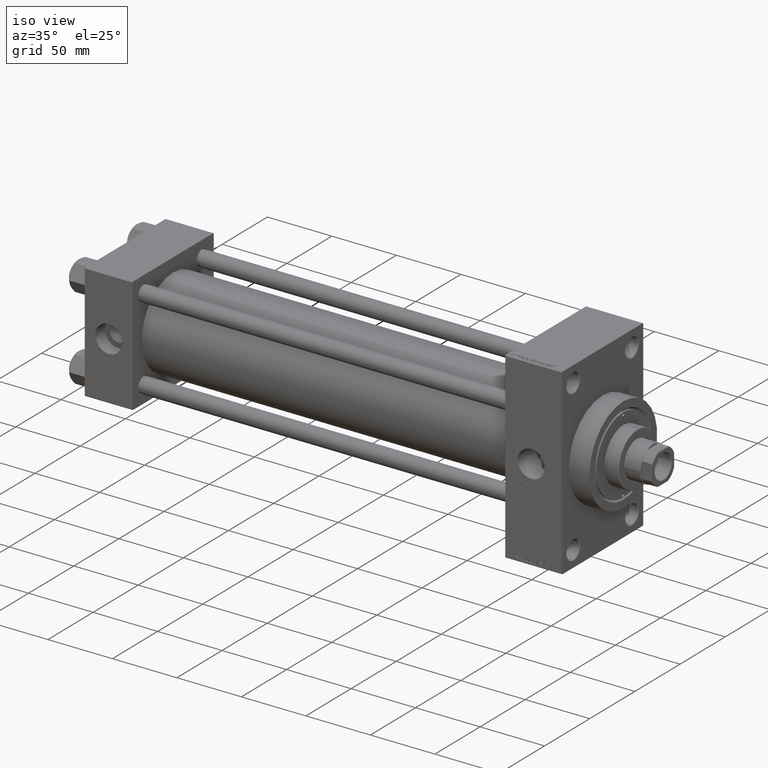
[diagram: clean part render]
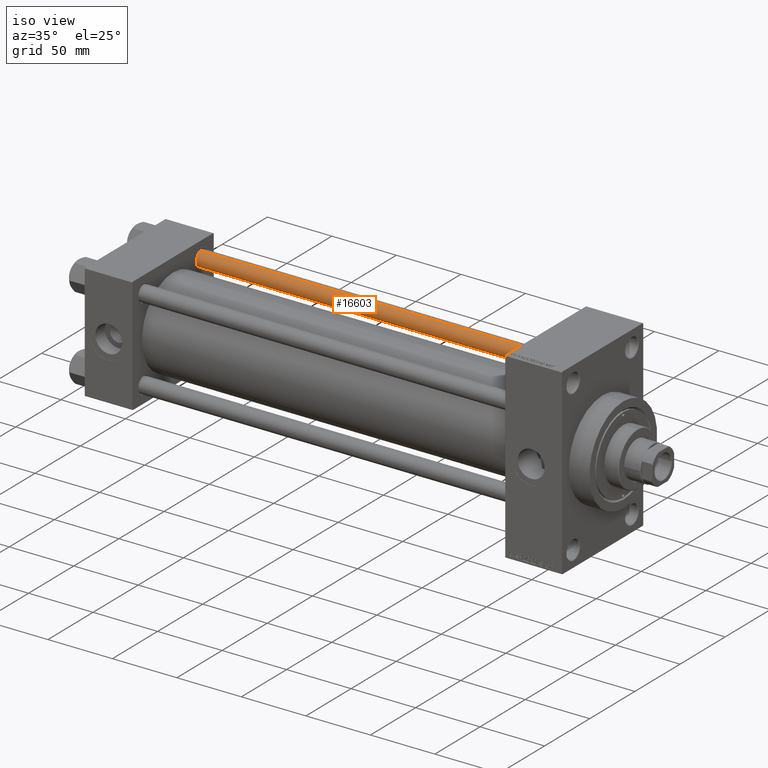
[diagram: same view with one face highlighted and labeled with its STEP entity id]
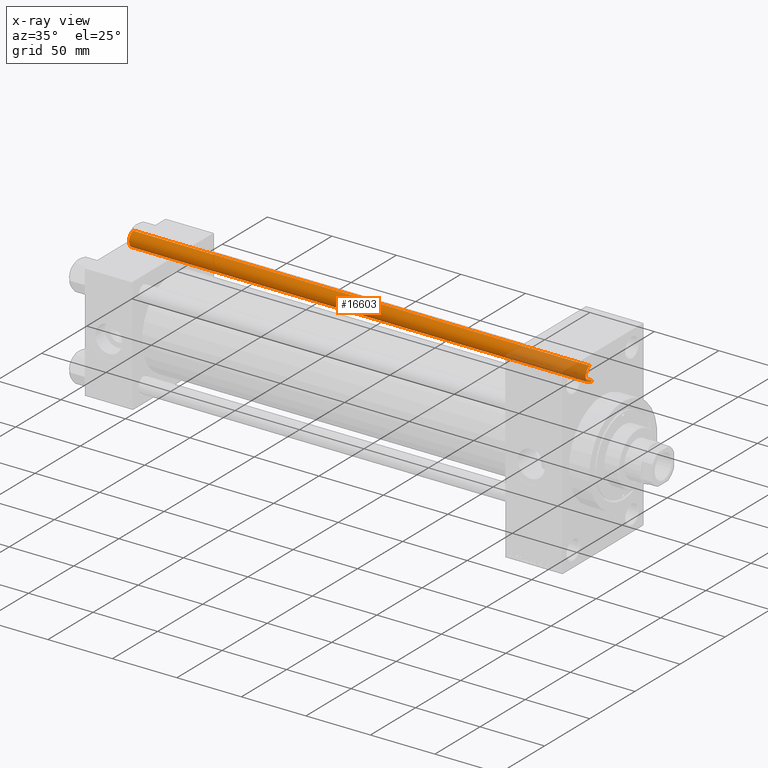
[diagram: x-ray of the same camera — body ghosted, the highlighted face saturated]
A machine part, iso view. The second image highlights one B-rep face of the part: STEP entity #16603.
The next image is the same camera in x-ray: the body ghosted, the highlighted face saturated — about 17% of this face is hidden behind the body in this view.
In plain terms, the highlighted cylindrical surface (edge-blend (fillet) strip) has radius 6 mm, axis along (-1, -0, 0).
Its self-contained STEP definition (entity closure, byte-faithful):
#1322 = DIRECTION ( 'NONE',  ( -0.000000000000000000, -0.000000000000000000, -1.000000000000000000 ) ) ;
#2584 = CARTESIAN_POINT ( 'NONE',  ( -6.000000000000000888, 0.000000000000000000, 354.5000000000000000 ) ) ;
#3206 = EDGE_CURVE ( 'NONE', #11249, #39735, #8517, .T. ) ;
#7422 = CARTESIAN_POINT ( 'NONE',  ( 0.000000000000000000, 0.000000000000000000, 354.5000000000000000 ) ) ;
#8517 = LINE ( 'NONE', #23143, #24872 ) ;
#8924 = DIRECTION ( 'NONE',  ( -0.000000000000000000, -0.000000000000000000, -1.000000000000000000 ) ) ;
#8975 = CARTESIAN_POINT ( 'NONE',  ( -6.000000000000000888, 0.000000000000000000, 0.5000000000001114664 ) ) ;
#9917 = ORIENTED_EDGE ( 'NONE', *, *, #42606, .F. ) ;
#11249 = VERTEX_POINT ( 'NONE', #2584 ) ;
#12225 = DIRECTION ( 'NONE',  ( 0.000000000000000000, 0.000000000000000000, -1.000000000000000000 ) ) ;
#12527 = CYLINDRICAL_SURFACE ( 'NONE', #16776, 6.000000000000000888 ) ;
#13973 = DIRECTION ( 'NONE',  ( -0.000000000000000000, -0.000000000000000000, 1.000000000000000000 ) ) ;
#14424 = CARTESIAN_POINT ( 'NONE',  ( 6.000000000000000888, 7.347880794884120722E-16, 355.0000000000000000 ) ) ;
#14719 = CIRCLE ( 'NONE', #42256, 6.000000000000000888 ) ;
#15637 = VERTEX_POINT ( 'NONE', #38490 ) ;
#16603 = ADVANCED_FACE ( 'NONE', ( #42449 ), #12527, .T. ) ;
#16776 = AXIS2_PLACEMENT_3D ( 'NONE', #41746, #8924, #38852 ) ;
#19321 = CIRCLE ( 'NONE', #43000, 6.000000000000000888 ) ;
#19554 = CARTESIAN_POINT ( 'NONE',  ( 6.000000000000000888, 7.347880794884120722E-16, 354.5000000000000000 ) ) ;
#20281 = EDGE_CURVE ( 'NONE', #39735, #15637, #14719, .T. ) ;
#21321 = VECTOR ( 'NONE', #31924, 1000.000000000000000 ) ;
#21608 = LINE ( 'NONE', #14424, #21321 ) ;
#23143 = CARTESIAN_POINT ( 'NONE',  ( -6.000000000000000888, 0.000000000000000000, 355.0000000000000000 ) ) ;
#23533 = EDGE_CURVE ( 'NONE', #34707, #11249, #19321, .T. ) ;
#24872 = VECTOR ( 'NONE', #1322, 1000.000000000000000 ) ;
#25232 = CARTESIAN_POINT ( 'NONE',  ( 0.000000000000000000, 0.000000000000000000, 0.5000000000001114664 ) ) ;
#29122 = EDGE_LOOP ( 'NONE', ( #9917, #44761, #39130, #33151 ) ) ;
#31924 = DIRECTION ( 'NONE',  ( -0.000000000000000000, -0.000000000000000000, -1.000000000000000000 ) ) ;
#33151 = ORIENTED_EDGE ( 'NONE', *, *, #20281, .T. ) ;
#34707 = VERTEX_POINT ( 'NONE', #19554 ) ;
#38490 = CARTESIAN_POINT ( 'NONE',  ( 6.000000000000000888, 7.347880794884120722E-16, 0.5000000000001114664 ) ) ;
#38852 = DIRECTION ( 'NONE',  ( -1.000000000000000000, 0.000000000000000000, 0.000000000000000000 ) ) ;
#39130 = ORIENTED_EDGE ( 'NONE', *, *, #3206, .T. ) ;
#39134 = DIRECTION ( 'NONE',  ( 1.000000000000000000, 0.000000000000000000, 0.000000000000000000 ) ) ;
#39735 = VERTEX_POINT ( 'NONE', #8975 ) ;
#41676 = DIRECTION ( 'NONE',  ( 1.000000000000000000, 0.000000000000000000, 0.000000000000000000 ) ) ;
#41746 = CARTESIAN_POINT ( 'NONE',  ( 0.000000000000000000, 0.000000000000000000, 355.0000000000000000 ) ) ;
#42256 = AXIS2_PLACEMENT_3D ( 'NONE', #25232, #13973, #39134 ) ;
#42449 = FACE_OUTER_BOUND ( 'NONE', #29122, .T. ) ;
#42606 = EDGE_CURVE ( 'NONE', #34707, #15637, #21608, .T. ) ;
#43000 = AXIS2_PLACEMENT_3D ( 'NONE', #7422, #12225, #41676 ) ;
#44761 = ORIENTED_EDGE ( 'NONE', *, *, #23533, .T. ) ;